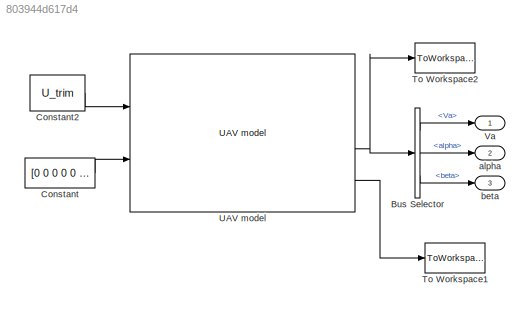
MODEL slx_803944d617d4
KIND model
CONFIG AbsTol = auto
CONFIG FixedStep = auto
CONFIG MaxStep = auto
CONFIG MinStep = auto
CONFIG RelTol = 1e-3
CONFIG SampleTimeConstraint = Unconstrained
CONFIG Solver = VariableStepAuto
CONFIG SolverMode = Auto
CONFIG SolverName = VariableStepAuto
CONFIG StartTime = 0.0
CONFIG StopTime = 100
BLOCK [BusSelector] Bus Selector
  OutputSignals = Va,alpha,beta
  Ports = [1, 3]
BLOCK [Constant] Constant
  Value = [0 0 0 0 0 0]
BLOCK [Constant] Constant2
  Value = U_trim
BLOCK [ToWorkspace] To Workspace1
  FixptAsFi = on
  MaxDataPoints = inf
  Ports = [1]
  SampleTime = -1
  Save2DSignal = 3-D array (concatenate along third dimension)
  SaveFormat = Timeseries
  VariableName = states
BLOCK [ToWorkspace] To Workspace2
  FixptAsFi = on
  MaxDataPoints = inf
  Ports = [1]
  SampleTime = -1
  Save2DSignal = 3-D array (concatenate along third dimension)
  SaveFormat = Timeseries
  VariableName = airdata
BLOCK [Reference] UAV model  REF=X8_lib/UAV model
  Ports = [2, 4]
  SourceBlock = X8_lib/UAV model
BLOCK [Outport] Va
  IconDisplay = Port number
BLOCK [Outport] alpha
  IconDisplay = Port number
  Port = 2
BLOCK [Outport] beta
  IconDisplay = Port number
  Port = 3
LINE Bus Selector:1 -> Va:1
LINE Bus Selector:2 -> alpha:1
LINE Bus Selector:3 -> beta:1
LINE Constant2:1 -> UAV model:1
LINE Constant:1 -> UAV model:2
NET UAV model:3 -> Bus Selector:1, To Workspace2:1
LINE UAV model:4 -> To Workspace1:1
note: NET lines group one-source signal fan-out (src -> all destinations, sorted); 1:1 wires keep LINE
